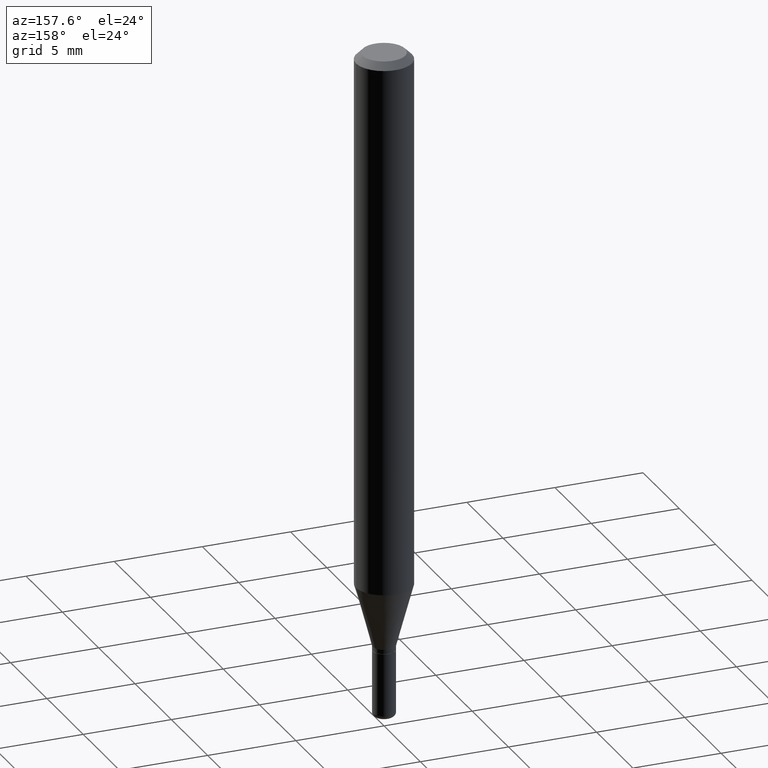
[diagram: clean part render]
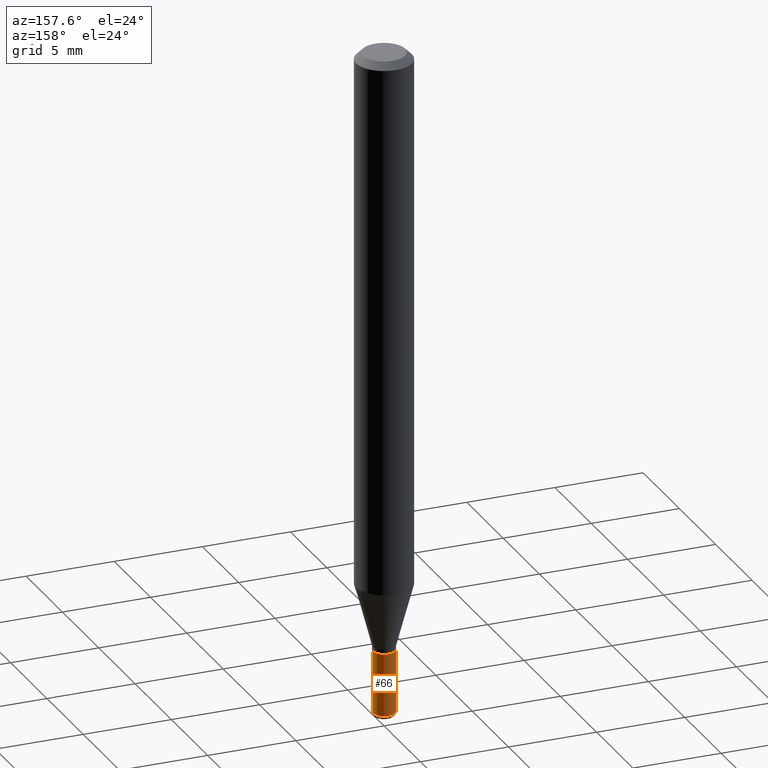
[diagram: same view with one face highlighted and labeled with its STEP entity id]
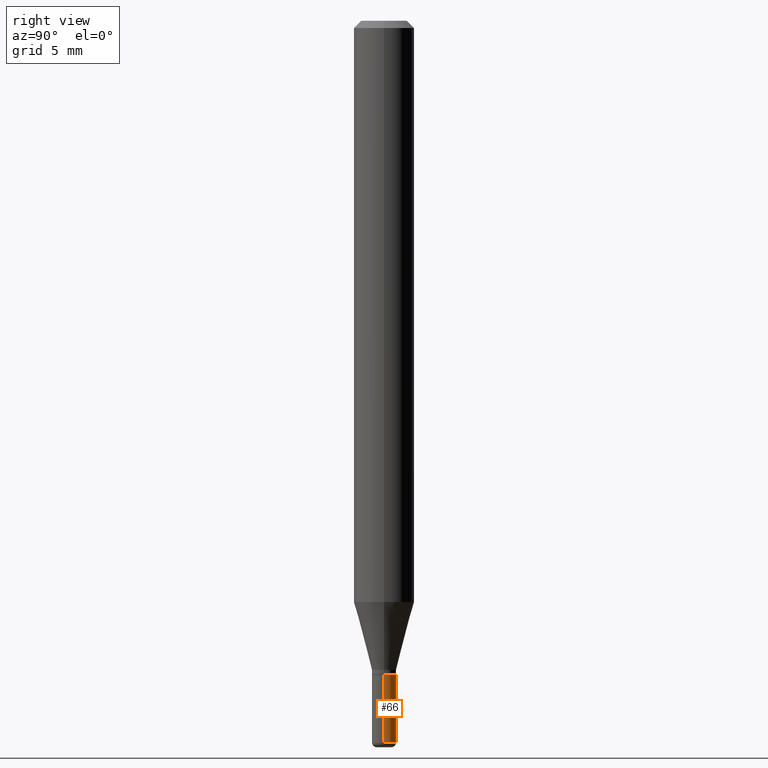
[diagram: same view with one face highlighted and labeled with its STEP entity id]
A machine part, auxiliary view. The second image highlights one B-rep face of the part: STEP entity #66.
A second angle (right view) of the same face is appended — the face is thin or edge-on in the first view.
In plain terms, the highlighted cylindrical surface (edge-blend (fillet) strip) has radius 0.635 mm, axis along (-0, 0, 1).
Its self-contained STEP definition (entity closure, byte-faithful):
#14 = EDGE_CURVE ( 'NONE', #444, #432, #235, .T. ) ;
#15 = CARTESIAN_POINT ( 'NONE',  ( -0.02500000000000000139, -4.780267817217242146E-15, -1.350000000000000089 ) ) ;
#48 = ORIENTED_EDGE ( 'NONE', *, *, #124, .F. ) ;
#63 = CARTESIAN_POINT ( 'NONE',  ( 3.643748521215853910E-29, -5.202307194876288105E-15, -1.490000000000000213 ) ) ;
#66 = ADVANCED_FACE ( 'NONE', ( #139 ), #97, .T. ) ;
#70 = VERTEX_POINT ( 'NONE', #502 ) ;
#76 = CIRCLE ( 'NONE', #465, 0.02499999999999994588 ) ;
#97 = CYLINDRICAL_SURFACE ( 'NONE', #427, 0.02499999999999997363 ) ;
#99 = DIRECTION ( 'NONE',  ( -2.445468806185136877E-29, 3.491481338843145188E-15, 1.000000000000000000 ) ) ;
#124 = EDGE_CURVE ( 'NONE', #435, #444, #461, .T. ) ;
#139 = FACE_OUTER_BOUND ( 'NONE', #167, .T. ) ;
#144 = DIRECTION ( 'NONE',  ( 1.000000000000000000, -6.982962677686265922E-15, 4.876176775795935232E-29 ) ) ;
#167 = EDGE_LOOP ( 'NONE', ( #224, #475, #266, #48 ) ) ;
#188 = LINE ( 'NONE', #219, #241 ) ;
#201 = CARTESIAN_POINT ( 'NONE',  ( 3.301382888349935078E-29, -4.713499807438246596E-15, -1.350000000000000089 ) ) ;
#219 = CARTESIAN_POINT ( 'NONE',  ( -0.02499999999999997363, 1.776356839400248591E-16, -1.229733772563725079E-30 ) ) ;
#224 = ORIENTED_EDGE ( 'NONE', *, *, #468, .T. ) ;
#234 = DIRECTION ( 'NONE',  ( -2.445468806185136597E-29, 3.491481338843145583E-15, 1.000000000000000000 ) ) ;
#235 = CIRCLE ( 'NONE', #456, 0.02500000000000000139 ) ;
#241 = VECTOR ( 'NONE', #348, 39.37007874015748143 ) ;
#245 = CARTESIAN_POINT ( 'NONE',  ( 0.02499999999999997363, -1.745740669421564705E-16, 1.219044193948982547E-30 ) ) ;
#266 = ORIENTED_EDGE ( 'NONE', *, *, #14, .F. ) ;
#289 = CARTESIAN_POINT ( 'NONE',  ( 0.02499999999999994588, -5.376881261818443984E-15, -1.490000000000000213 ) ) ;
#298 = DIRECTION ( 'NONE',  ( 1.000000000000000000, -6.982962677686269866E-15, 0.000000000000000000 ) ) ;
#301 = EDGE_CURVE ( 'NONE', #70, #432, #188, .T. ) ;
#332 = VECTOR ( 'NONE', #99, 39.37007874015748143 ) ;
#340 = CARTESIAN_POINT ( 'NONE',  ( 0.02500000000000000139, -4.888073874380403263E-15, -1.350000000000000089 ) ) ;
#348 = DIRECTION ( 'NONE',  ( -2.445468806185136877E-29, 3.491481338843145188E-15, 1.000000000000000000 ) ) ;
#381 = DIRECTION ( 'NONE',  ( -2.445468806185136597E-29, 3.491481338843145583E-15, 1.000000000000000000 ) ) ;
#405 = DIRECTION ( 'NONE',  ( 1.000000000000000000, -6.982962677686254878E-15, 0.000000000000000000 ) ) ;
#427 = AXIS2_PLACEMENT_3D ( 'NONE', #496, #381, #144 ) ;
#432 = VERTEX_POINT ( 'NONE', #15 ) ;
#435 = VERTEX_POINT ( 'NONE', #289 ) ;
#444 = VERTEX_POINT ( 'NONE', #340 ) ;
#456 = AXIS2_PLACEMENT_3D ( 'NONE', #201, #234, #405 ) ;
#461 = LINE ( 'NONE', #245, #332 ) ;
#465 = AXIS2_PLACEMENT_3D ( 'NONE', #63, #503, #298 ) ;
#468 = EDGE_CURVE ( 'NONE', #435, #70, #76, .T. ) ;
#475 = ORIENTED_EDGE ( 'NONE', *, *, #301, .T. ) ;
#496 = CARTESIAN_POINT ( 'NONE',  ( 0.000000000000000000, 0.000000000000000000, 0.000000000000000000 ) ) ;
#502 = CARTESIAN_POINT ( 'NONE',  ( -0.02499999999999994588, -4.780267817217242146E-15, -1.490000000000000213 ) ) ;
#503 = DIRECTION ( 'NONE',  ( -2.445468806185136597E-29, 3.491481338843145583E-15, 1.000000000000000000 ) ) ;